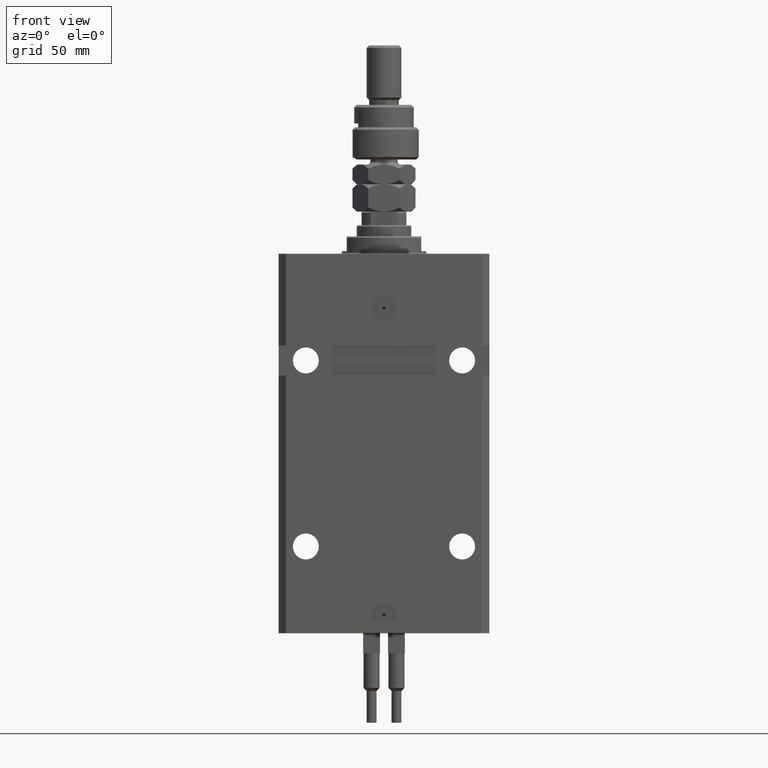
[diagram: clean part render]
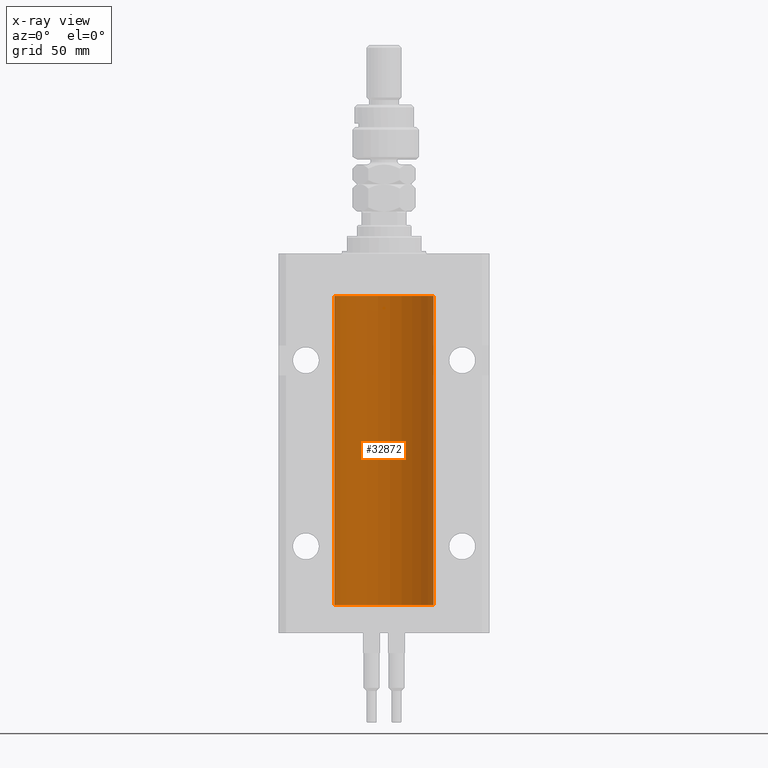
[diagram: x-ray — body ghosted, one internal face saturated and labeled with its STEP entity id]
A machine part, front view, then the same camera in x-ray: the body is ghosted and one INTERNAL B-rep face — a face not visible from any outside direction — is saturated and labeled: STEP entity #32872.
In plain terms, the highlighted cylindrical surface (partial cylindrical patch) has radius 20 mm, axis along (0, 0, 1).
Its self-contained STEP definition (entity closure, byte-faithful):
#5 = CARTESIAN_POINT ( 'NONE',  ( 19.99999999999999645, 0.1631318418333148335, -23.37500000000016698 ) ) ;
#437 = ORIENTED_EDGE ( 'NONE', *, *, #4814, .T. ) ;
#1208 = AXIS2_PLACEMENT_3D ( 'NONE', #43167, #3354, #51292 ) ;
#1581 = CARTESIAN_POINT ( 'NONE',  ( 20.00000000000010303, 3.555666336392955914E-13, -23.37499999999667111 ) ) ;
#2449 = LINE ( 'NONE', #38863, #20494 ) ;
#3354 = DIRECTION ( 'NONE',  ( 0.000000000000000000, 0.000000000000000000, 1.000000000000000000 ) ) ;
#3458 = CARTESIAN_POINT ( 'NONE',  ( 19.99256353007439913, 0.5574106582031163049, -24.32639035180115172 ) ) ;
#3728 = CARTESIAN_POINT ( 'NONE',  ( 19.99256353007439202, 0.5574106582031183033, -139.3263903518010522 ) ) ;
#3822 = CARTESIAN_POINT ( 'NONE',  ( 20.00000000000000000, -1.112928376255647276E-15, -24.62500000000000000 ) ) ;
#3967 = ORIENTED_EDGE ( 'NONE', *, *, #20155, .T. ) ;
#3980 = CARTESIAN_POINT ( 'NONE',  ( 19.99023198964934167, 0.6250000000002770006, -139.1631101482932422 ) ) ;
#4061 = CARTESIAN_POINT ( 'NONE',  ( -20.00000000000000000, 2.449293598294706513E-15, -141.5999999999999943 ) ) ;
#4814 = EDGE_CURVE ( 'NONE', #23787, #51383, #2449, .T. ) ;
#5413 = AXIS2_PLACEMENT_3D ( 'NONE', #35125, #47659, #27286 ) ;
#6266 = B_SPLINE_CURVE_WITH_KNOTS ( 'NONE', 3,
 ( #19937, #39822, #11004, #43473, #5, #7600 ),
 .UNSPECIFIED., .F., .F.,
 ( 4, 2, 4 ),
 ( 0.0009772989342736162956, 0.001465726722058837295, 0.001954154509844058078 ),
 .UNSPECIFIED. ) ;
#7600 = CARTESIAN_POINT ( 'NONE',  ( 20.00000000000010303, 3.555666336392955914E-13, -23.37499999999667111 ) ) ;
#7906 = CARTESIAN_POINT ( 'NONE',  ( 19.99023198964909298, 0.6250000000081508134, -23.99999999999910472 ) ) ;
#8426 = CARTESIAN_POINT ( 'NONE',  ( 19.99023198964909298, 0.6250000000081585849, -138.9999999999990621 ) ) ;
#9043 = VERTEX_POINT ( 'NONE', #3822 ) ;
#9555 = CARTESIAN_POINT ( 'NONE',  ( 20.00000000000000000, 0.000000000000000000, -17.00000000000000000 ) ) ;
#10548 = EDGE_CURVE ( 'NONE', #36069, #9043, #28919, .T. ) ;
#11004 = CARTESIAN_POINT ( 'NONE',  ( 19.99253733128256272, 0.5586305947778931191, -23.67476036735258305 ) ) ;
#11422 = CARTESIAN_POINT ( 'NONE',  ( 19.99023198964909298, 0.6250000000081585849, -138.9999999999990621 ) ) ;
#11824 = CARTESIAN_POINT ( 'NONE',  ( 19.99638788807193279, 0.3844440352705381092, -24.49948058986480959 ) ) ;
#12092 = CARTESIAN_POINT ( 'NONE',  ( 19.99638788807192924, 0.3844440352705415509, -139.4994805898647883 ) ) ;
#12885 = CARTESIAN_POINT ( 'NONE',  ( 20.00000000000000000, -2.179639976041390721E-15, -139.6249999999999716 ) ) ;
#13071 = DIRECTION ( 'NONE',  ( -0.000000000000000000, -0.000000000000000000, 1.000000000000000000 ) ) ;
#14312 = VERTEX_POINT ( 'NONE', #47964 ) ;
#15001 = CARTESIAN_POINT ( 'NONE',  ( 19.99947351343144319, 0.1636818329565326025, -24.60872855715643936 ) ) ;
#15293 = CARTESIAN_POINT ( 'NONE',  ( 19.99023198964909298, 0.6250000000081508134, -23.99999999999910472 ) ) ;
#18600 = CARTESIAN_POINT ( 'NONE',  ( 20.00000000000000000, 0.000000000000000000, -141.5999999999999943 ) ) ;
#18681 = DIRECTION ( 'NONE',  ( -0.000000000000000000, -0.000000000000000000, 1.000000000000000000 ) ) ;
#19200 = CARTESIAN_POINT ( 'NONE',  ( 20.00000000000000000, 0.08261455565447775595, -24.62499999999998224 ) ) ;
#19228 = DIRECTION ( 'NONE',  ( -0.000000000000000000, -0.000000000000000000, 1.000000000000000000 ) ) ;
#19937 = CARTESIAN_POINT ( 'NONE',  ( 19.99023198964909298, 0.6250000000081508134, -23.99999999999910472 ) ) ;
#19979 = CARTESIAN_POINT ( 'NONE',  ( 19.99023198964934522, 0.6250000000002681189, -24.16311014829328840 ) ) ;
#20155 = EDGE_CURVE ( 'NONE', #51383, #29638, #38620, .T. ) ;
#20494 = VECTOR ( 'NONE', #19228, 1000.000000000000000 ) ;
#21843 = CYLINDRICAL_SURFACE ( 'NONE', #22381, 20.00000000000000000 ) ;
#21934 = EDGE_CURVE ( 'NONE', #34839, #14312, #49749, .T. ) ;
#22190 = CARTESIAN_POINT ( 'NONE',  ( 19.99023198964909298, 0.6250000000081585849, -138.9999999999990621 ) ) ;
#22273 = LINE ( 'NONE', #18600, #50124 ) ;
#22381 = AXIS2_PLACEMENT_3D ( 'NONE', #38072, #18681, #46416 ) ;
#22695 = CARTESIAN_POINT ( 'NONE',  ( 19.99023198964935588, 0.6249999999995818900, -138.8369638477980459 ) ) ;
#23787 = VERTEX_POINT ( 'NONE', #47895 ) ;
#26604 = EDGE_CURVE ( 'NONE', #9043, #50693, #27652, .T. ) ;
#27286 = DIRECTION ( 'NONE',  ( 1.000000000000000000, 0.000000000000000000, 0.000000000000000000 ) ) ;
#27652 = B_SPLINE_CURVE_WITH_KNOTS ( 'NONE', 3,
 ( #39094, #19200, #15001, #50870, #11824, #3458, #19979, #7906 ),
 .UNSPECIFIED., .F., .F.,
 ( 4, 2, 2, 4 ),
 ( 2.229608604094221016E-18, 0.0002443247335684058086, 0.0004886494671368094489, 0.0009772989342736162956 ),
 .UNSPECIFIED. ) ;
#27841 = CARTESIAN_POINT ( 'NONE',  ( 20.00000000000000355, 0.08261455565448021232, -139.6249999999999716 ) ) ;
#28919 = LINE ( 'NONE', #44870, #30180 ) ;
#29638 = VERTEX_POINT ( 'NONE', #11422 ) ;
#30180 = VECTOR ( 'NONE', #51683, 1000.000000000000000 ) ;
#30264 = ORIENTED_EDGE ( 'NONE', *, *, #46950, .F. ) ;
#31298 = CIRCLE ( 'NONE', #1208, 20.00000000000000000 ) ;
#32612 = ORIENTED_EDGE ( 'NONE', *, *, #38237, .T. ) ;
#32872 = ADVANCED_FACE ( 'NONE', ( #50346 ), #21843, .F. ) ;
#33670 = CARTESIAN_POINT ( 'NONE',  ( 20.00000000000000000, -2.179639976041390721E-15, -139.6249999999999716 ) ) ;
#34024 = VERTEX_POINT ( 'NONE', #4061 ) ;
#34835 = DIRECTION ( 'NONE',  ( -0.000000000000000000, -0.000000000000000000, 1.000000000000000000 ) ) ;
#34839 = VERTEX_POINT ( 'NONE', #9555 ) ;
#35125 = CARTESIAN_POINT ( 'NONE',  ( 0.000000000000000000, 0.000000000000000000, -17.00000000000000000 ) ) ;
#35375 = VECTOR ( 'NONE', #13071, 1000.000000000000000 ) ;
#35592 = EDGE_LOOP ( 'NONE', ( #30264, #46909, #437, #3967, #42817, #49658, #43948, #32612, #45994, #41408 ) ) ;
#36069 = VERTEX_POINT ( 'NONE', #51369 ) ;
#36347 = EDGE_CURVE ( 'NONE', #40827, #34839, #22273, .T. ) ;
#38072 = CARTESIAN_POINT ( 'NONE',  ( 0.000000000000000000, 0.000000000000000000, -141.5999999999999943 ) ) ;
#38237 = EDGE_CURVE ( 'NONE', #50693, #40827, #6266, .T. ) ;
#38409 = CARTESIAN_POINT ( 'NONE',  ( 20.00000000000010303, 3.555666311577537537E-13, -138.3749999999966178 ) ) ;
#38620 = B_SPLINE_CURVE_WITH_KNOTS ( 'NONE', 3,
 ( #12885, #27841, #48489, #47968, #12092, #3728, #3980, #8426 ),
 .UNSPECIFIED., .F., .F.,
 ( 4, 2, 2, 4 ),
 ( 2.118185448276490261E-18, 0.0002443247335684271674, 0.0004886494671368522748, 0.0009772989342736434007 ),
 .UNSPECIFIED. ) ;
#38863 = CARTESIAN_POINT ( 'NONE',  ( 20.00000000000000000, 0.000000000000000000, -141.5999999999999943 ) ) ;
#39094 = CARTESIAN_POINT ( 'NONE',  ( 20.00000000000000000, -1.112928376255647276E-15, -24.62500000000000000 ) ) ;
#39822 = CARTESIAN_POINT ( 'NONE',  ( 19.99023198964935588, 0.6249999999995746736, -23.83696384779806721 ) ) ;
#40827 = VERTEX_POINT ( 'NONE', #1581 ) ;
#41408 = ORIENTED_EDGE ( 'NONE', *, *, #21934, .T. ) ;
#42060 = CARTESIAN_POINT ( 'NONE',  ( 19.99999999999999645, 0.1631318418333188858, -138.3750000000001421 ) ) ;
#42817 = ORIENTED_EDGE ( 'NONE', *, *, #49516, .T. ) ;
#43167 = CARTESIAN_POINT ( 'NONE',  ( 0.000000000000000000, 0.000000000000000000, -141.5999999999999943 ) ) ;
#43473 = CARTESIAN_POINT ( 'NONE',  ( 19.99769474220010679, 0.3253030616682400233, -23.44140633897632142 ) ) ;
#43546 = CARTESIAN_POINT ( 'NONE',  ( 19.99253733128256272, 0.5586305947779011127, -138.6747603673525475 ) ) ;
#43948 = ORIENTED_EDGE ( 'NONE', *, *, #26604, .T. ) ;
#44222 = LINE ( 'NONE', #44489, #35375 ) ;
#44489 = CARTESIAN_POINT ( 'NONE',  ( -20.00000000000000000, 2.449293598294706513E-15, -141.5999999999999943 ) ) ;
#44870 = CARTESIAN_POINT ( 'NONE',  ( 20.00000000000000000, 0.000000000000000000, -141.5999999999999943 ) ) ;
#45994 = ORIENTED_EDGE ( 'NONE', *, *, #36347, .T. ) ;
#46416 = DIRECTION ( 'NONE',  ( 1.000000000000000000, 0.000000000000000000, 0.000000000000000000 ) ) ;
#46873 = B_SPLINE_CURVE_WITH_KNOTS ( 'NONE', 3,
 ( #22190, #22695, #43546, #47722, #42060, #38409 ),
 .UNSPECIFIED., .F., .F.,
 ( 4, 2, 4 ),
 ( 0.0009772989342736434007, 0.001465726722058881748, 0.001954154509844120095 ),
 .UNSPECIFIED. ) ;
#46909 = ORIENTED_EDGE ( 'NONE', *, *, #50091, .F. ) ;
#46950 = EDGE_CURVE ( 'NONE', #34024, #14312, #44222, .T. ) ;
#47659 = DIRECTION ( 'NONE',  ( 0.000000000000000000, 0.000000000000000000, 1.000000000000000000 ) ) ;
#47722 = CARTESIAN_POINT ( 'NONE',  ( 19.99769474220010679, 0.3253030616682487941, -138.4414063389762646 ) ) ;
#47895 = CARTESIAN_POINT ( 'NONE',  ( 20.00000000000000000, 0.000000000000000000, -141.5999999999999943 ) ) ;
#47964 = CARTESIAN_POINT ( 'NONE',  ( -20.00000000000000000, 2.449293598294706513E-15, -17.00000000000000000 ) ) ;
#47968 = CARTESIAN_POINT ( 'NONE',  ( 19.99766100389833312, 0.3150982863324716665, -139.5459443824127561 ) ) ;
#48489 = CARTESIAN_POINT ( 'NONE',  ( 19.99947351343144319, 0.1636818329565261354, -139.6087285571564109 ) ) ;
#49516 = EDGE_CURVE ( 'NONE', #29638, #36069, #46873, .T. ) ;
#49658 = ORIENTED_EDGE ( 'NONE', *, *, #10548, .T. ) ;
#49749 = CIRCLE ( 'NONE', #5413, 20.00000000000000000 ) ;
#50091 = EDGE_CURVE ( 'NONE', #23787, #34024, #31298, .T. ) ;
#50124 = VECTOR ( 'NONE', #34835, 1000.000000000000000 ) ;
#50346 = FACE_OUTER_BOUND ( 'NONE', #35592, .T. ) ;
#50693 = VERTEX_POINT ( 'NONE', #15293 ) ;
#50870 = CARTESIAN_POINT ( 'NONE',  ( 19.99766100389833667, 0.3150982863324735539, -24.54594438241279164 ) ) ;
#51292 = DIRECTION ( 'NONE',  ( 1.000000000000000000, 0.000000000000000000, 0.000000000000000000 ) ) ;
#51369 = CARTESIAN_POINT ( 'NONE',  ( 20.00000000000010303, 3.555666311577537537E-13, -138.3749999999966178 ) ) ;
#51383 = VERTEX_POINT ( 'NONE', #33670 ) ;
#51683 = DIRECTION ( 'NONE',  ( -0.000000000000000000, -0.000000000000000000, 1.000000000000000000 ) ) ;